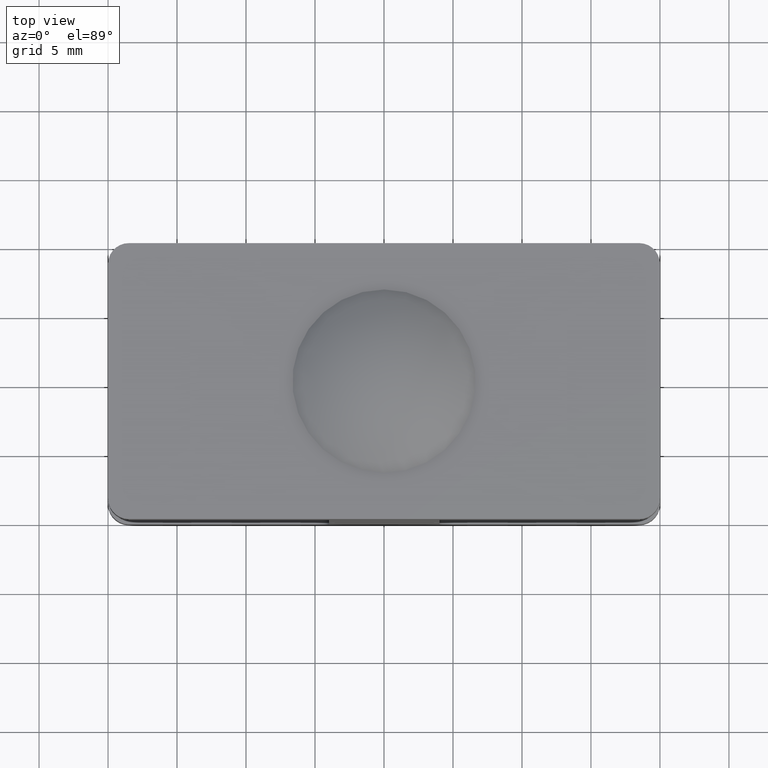
[diagram: clean part render]
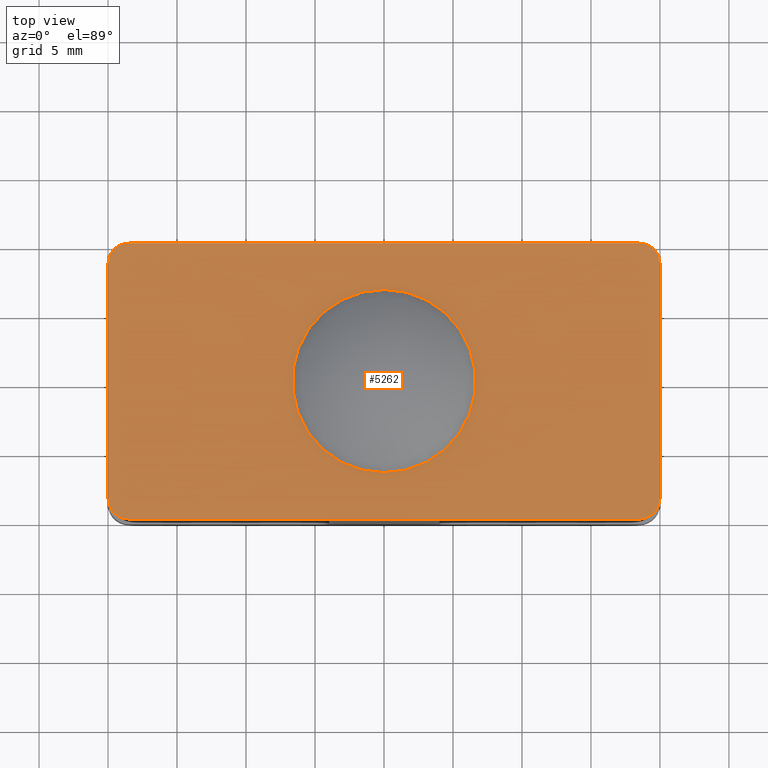
[diagram: same view with one face highlighted and labeled with its STEP entity id]
A machine part, top view. The second image highlights one B-rep face of the part: STEP entity #5262.
In plain terms, the highlighted planar face has unit normal (0, 0, 1).
Its self-contained STEP definition (entity closure, byte-faithful):
#617 = CARTESIAN_POINT ( 'NONE',  ( 20.00000000000000711, 8.499999999999998224, 0.000000000000000000 ) ) ;
#1058 = DIRECTION ( 'NONE',  ( -0.000000000000000000, 0.000000000000000000, 1.000000000000000000 ) ) ;
#1088 = CARTESIAN_POINT ( 'NONE',  ( 0.000000000000000000, 0.000000000000000000, 0.000000000000000000 ) ) ;
#1345 = CARTESIAN_POINT ( 'NONE',  ( 18.50000000000000711, 9.999999999999998224, 0.000000000000000000 ) ) ;
#1404 = DIRECTION ( 'NONE',  ( -0.000000000000000000, 0.000000000000000000, 1.000000000000000000 ) ) ;
#1731 = CARTESIAN_POINT ( 'NONE',  ( -18.49999999999998934, -10.00000000000000355, 0.000000000000000000 ) ) ;
#2206 = DIRECTION ( 'NONE',  ( 1.000000000000000000, 0.000000000000000000, 0.000000000000000000 ) ) ;
#2531 = DIRECTION ( 'NONE',  ( -0.000000000000000000, -0.000000000000000000, 1.000000000000000000 ) ) ;
#4829 = EDGE_LOOP ( 'NONE', ( #30211, #32835, #10332, #29368, #5178, #35068, #27171, #27480 ) ) ;
#5152 = EDGE_CURVE ( 'NONE', #11005, #21372, #33986, .T. ) ;
#5178 = ORIENTED_EDGE ( 'NONE', *, *, #5353, .T. ) ;
#5262 = ADVANCED_FACE ( 'NONE', ( #14888, #31044 ), #30973, .T. ) ;
#5353 = EDGE_CURVE ( 'NONE', #21372, #20212, #22071, .T. ) ;
#5825 = EDGE_CURVE ( 'NONE', #34622, #13450, #29312, .T. ) ;
#6544 = EDGE_CURVE ( 'NONE', #22586, #11005, #32641, .T. ) ;
#7207 = CARTESIAN_POINT ( 'NONE',  ( -19.99999999999998934, -8.500000000000003553, 0.000000000000000000 ) ) ;
#7518 = VECTOR ( 'NONE', #31430, 1000.000000000000000 ) ;
#7810 = EDGE_CURVE ( 'NONE', #20212, #14124, #16825, .T. ) ;
#7911 = EDGE_LOOP ( 'NONE', ( #10472 ) ) ;
#8876 = EDGE_CURVE ( 'NONE', #13450, #22586, #14283, .T. ) ;
#9562 = DIRECTION ( 'NONE',  ( 1.000000000000000000, 0.000000000000000000, 0.000000000000000000 ) ) ;
#10332 = ORIENTED_EDGE ( 'NONE', *, *, #6544, .T. ) ;
#10472 = ORIENTED_EDGE ( 'NONE', *, *, #25911, .F. ) ;
#10491 = VERTEX_POINT ( 'NONE', #19387 ) ;
#10600 = DIRECTION ( 'NONE',  ( -0.000000000000000000, 0.000000000000000000, 1.000000000000000000 ) ) ;
#11005 = VERTEX_POINT ( 'NONE', #18988 ) ;
#11602 = DIRECTION ( 'NONE',  ( 1.000000000000000000, 0.000000000000000000, 0.000000000000000000 ) ) ;
#13165 = CARTESIAN_POINT ( 'NONE',  ( -18.49999999999999289, 8.499999999999998224, 0.000000000000000000 ) ) ;
#13450 = VERTEX_POINT ( 'NONE', #7207 ) ;
#13952 = DIRECTION ( 'NONE',  ( 1.734723475976806848E-16, -1.000000000000000000, 0.000000000000000000 ) ) ;
#14124 = VERTEX_POINT ( 'NONE', #1345 ) ;
#14283 = CIRCLE ( 'NONE', #15955, 1.500000000000001332 ) ;
#14700 = CARTESIAN_POINT ( 'NONE',  ( 20.00000000000000711, 9.999999999999998224, 0.000000000000000000 ) ) ;
#14888 = FACE_BOUND ( 'NONE', #7911, .T. ) ;
#15955 = AXIS2_PLACEMENT_3D ( 'NONE', #17237, #1058, #19874 ) ;
#16030 = CARTESIAN_POINT ( 'NONE',  ( 0.000000000000000000, 0.000000000000000000, 1.734723475976807489E-15 ) ) ;
#16254 = DIRECTION ( 'NONE',  ( 1.000000000000000000, 0.000000000000000000, 0.000000000000000000 ) ) ;
#16556 = VECTOR ( 'NONE', #28241, 1000.000000000000000 ) ;
#16825 = CIRCLE ( 'NONE', #22292, 1.500000000000001332 ) ;
#17237 = CARTESIAN_POINT ( 'NONE',  ( -18.49999999999998934, -8.500000000000003553, 0.000000000000000000 ) ) ;
#17578 = VERTEX_POINT ( 'NONE', #22593 ) ;
#17582 = CARTESIAN_POINT ( 'NONE',  ( 18.50000000000000355, -8.500000000000003553, 0.000000000000000000 ) ) ;
#17775 = CARTESIAN_POINT ( 'NONE',  ( 20.00000000000001066, -8.500000000000003553, 0.000000000000000000 ) ) ;
#18988 = CARTESIAN_POINT ( 'NONE',  ( 18.50000000000000355, -10.00000000000000355, 0.000000000000000000 ) ) ;
#19154 = DIRECTION ( 'NONE',  ( 1.000000000000000000, 0.000000000000000000, 0.000000000000000000 ) ) ;
#19387 = CARTESIAN_POINT ( 'NONE',  ( -18.49999999999999289, 9.999999999999998224, 0.000000000000000000 ) ) ;
#19874 = DIRECTION ( 'NONE',  ( 1.000000000000000000, 0.000000000000000000, 0.000000000000000000 ) ) ;
#20212 = VERTEX_POINT ( 'NONE', #617 ) ;
#21372 = VERTEX_POINT ( 'NONE', #17775 ) ;
#21886 = DIRECTION ( 'NONE',  ( -0.000000000000000000, 0.000000000000000000, 1.000000000000000000 ) ) ;
#22071 = LINE ( 'NONE', #14700, #16556 ) ;
#22240 = AXIS2_PLACEMENT_3D ( 'NONE', #17582, #1404, #9562 ) ;
#22292 = AXIS2_PLACEMENT_3D ( 'NONE', #34701, #10600, #2206 ) ;
#22586 = VERTEX_POINT ( 'NONE', #1731 ) ;
#22593 = CARTESIAN_POINT ( 'NONE',  ( 6.249999999999998224, 0.000000000000000000, 1.734723475976807489E-15 ) ) ;
#22780 = LINE ( 'NONE', #25944, #7518 ) ;
#22866 = DIRECTION ( 'NONE',  ( -0.000000000000000000, 0.000000000000000000, 1.000000000000000000 ) ) ;
#24652 = AXIS2_PLACEMENT_3D ( 'NONE', #16030, #2531, #16254 ) ;
#24881 = EDGE_CURVE ( 'NONE', #10491, #34622, #30983, .T. ) ;
#25911 = EDGE_CURVE ( 'NONE', #17578, #17578, #34381, .T. ) ;
#25944 = CARTESIAN_POINT ( 'NONE',  ( -19.99999999999999289, 9.999999999999998224, 0.000000000000000000 ) ) ;
#26257 = VECTOR ( 'NONE', #34665, 1000.000000000000000 ) ;
#27171 = ORIENTED_EDGE ( 'NONE', *, *, #28071, .T. ) ;
#27480 = ORIENTED_EDGE ( 'NONE', *, *, #24881, .T. ) ;
#27742 = AXIS2_PLACEMENT_3D ( 'NONE', #1088, #22866, #11602 ) ;
#28071 = EDGE_CURVE ( 'NONE', #14124, #10491, #22780, .T. ) ;
#28241 = DIRECTION ( 'NONE',  ( -1.734723475976806848E-16, 1.000000000000000000, -0.000000000000000000 ) ) ;
#28286 = CARTESIAN_POINT ( 'NONE',  ( -19.99999999999999289, 8.499999999999998224, 0.000000000000000000 ) ) ;
#29312 = LINE ( 'NONE', #30239, #31868 ) ;
#29368 = ORIENTED_EDGE ( 'NONE', *, *, #5152, .T. ) ;
#30211 = ORIENTED_EDGE ( 'NONE', *, *, #5825, .T. ) ;
#30239 = CARTESIAN_POINT ( 'NONE',  ( -19.99999999999999289, 9.999999999999998224, 0.000000000000000000 ) ) ;
#30973 = PLANE ( 'NONE',  #27742 ) ;
#30983 = CIRCLE ( 'NONE', #32152, 1.500000000000001332 ) ;
#31044 = FACE_OUTER_BOUND ( 'NONE', #4829, .T. ) ;
#31430 = DIRECTION ( 'NONE',  ( -1.000000000000000000, -0.000000000000000000, -0.000000000000000000 ) ) ;
#31868 = VECTOR ( 'NONE', #13952, 1000.000000000000000 ) ;
#32152 = AXIS2_PLACEMENT_3D ( 'NONE', #13165, #21886, #19154 ) ;
#32423 = CARTESIAN_POINT ( 'NONE',  ( -19.99999999999998934, -10.00000000000000355, 0.000000000000000000 ) ) ;
#32641 = LINE ( 'NONE', #32423, #26257 ) ;
#32835 = ORIENTED_EDGE ( 'NONE', *, *, #8876, .T. ) ;
#33986 = CIRCLE ( 'NONE', #22240, 1.500000000000001332 ) ;
#34381 = CIRCLE ( 'NONE', #24652, 6.249999999999998224 ) ;
#34622 = VERTEX_POINT ( 'NONE', #28286 ) ;
#34665 = DIRECTION ( 'NONE',  ( 1.000000000000000000, 0.000000000000000000, 0.000000000000000000 ) ) ;
#34701 = CARTESIAN_POINT ( 'NONE',  ( 18.50000000000000711, 8.499999999999998224, 0.000000000000000000 ) ) ;
#35068 = ORIENTED_EDGE ( 'NONE', *, *, #7810, .T. ) ;